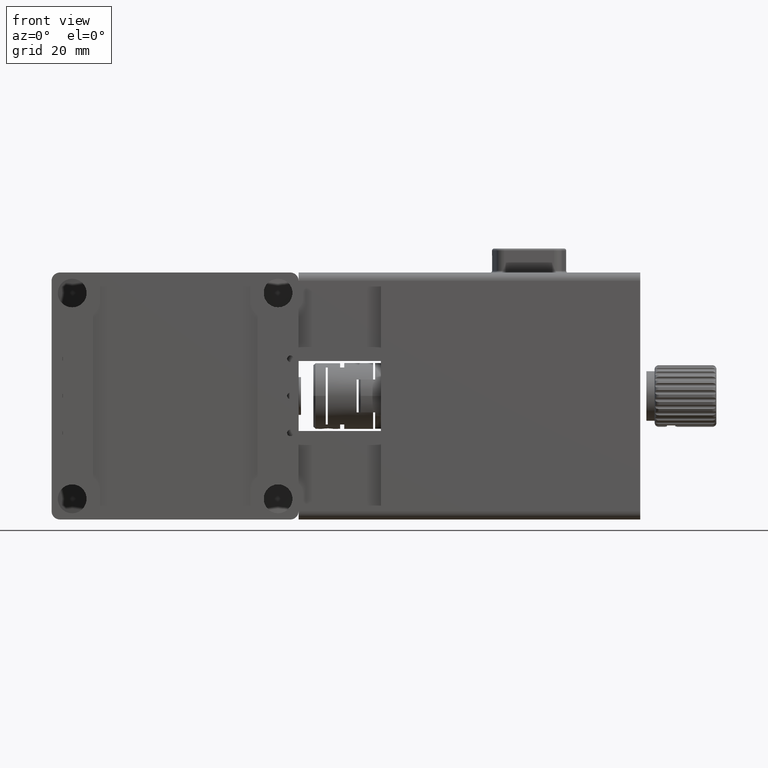
[diagram: clean part render]
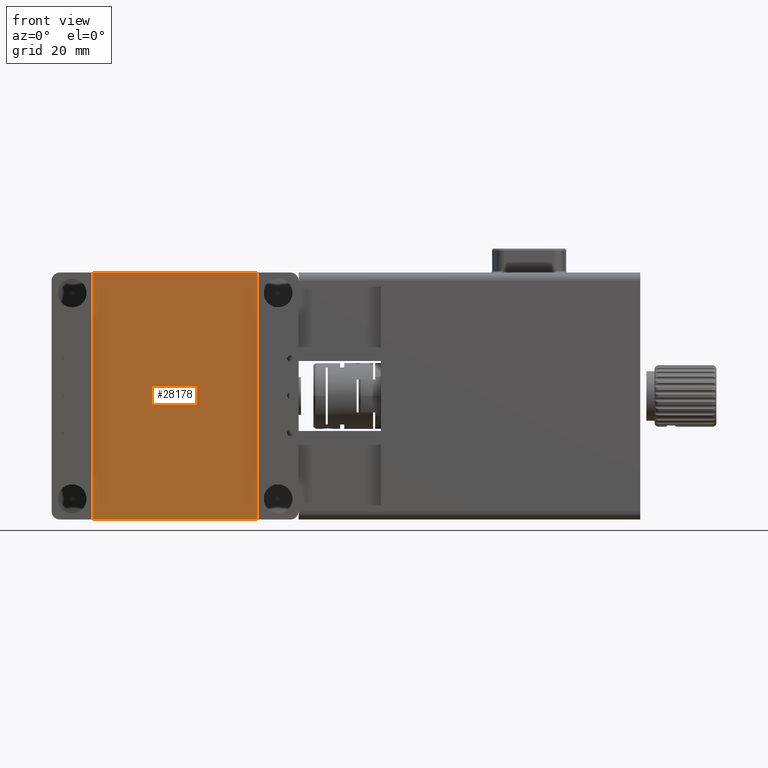
[diagram: same view with one face highlighted and labeled with its STEP entity id]
A machine part, front view. The second image highlights one B-rep face of the part: STEP entity #28178.
In plain terms, the highlighted planar face has unit normal (0, -1, 0).
Its self-contained STEP definition (entity closure, byte-faithful):
#312 = ORIENTED_EDGE ( 'NONE', *, *, #38668, .T. ) ;
#1099 = LINE ( 'NONE', #41684, #30943 ) ;
#4701 = VECTOR ( 'NONE', #32965, 1000.000000000000000 ) ;
#5623 = VERTEX_POINT ( 'NONE', #11141 ) ;
#9245 = VERTEX_POINT ( 'NONE', #25505 ) ;
#10090 = LINE ( 'NONE', #10281, #19238 ) ;
#10281 = CARTESIAN_POINT ( 'NONE',  ( -30.00000000000000000, 1.000000000000000900, -30.00000000000000000 ) ) ;
#11141 = CARTESIAN_POINT ( 'NONE',  ( -19.99999999999999600, 1.000000000000000000, -30.00000000000000700 ) ) ;
#11971 = CARTESIAN_POINT ( 'NONE',  ( 2.234376572406160400, 1.000000000000000000, 1.329375062896291300 ) ) ;
#12086 = LINE ( 'NONE', #27591, #31513 ) ;
#15869 = DIRECTION ( 'NONE',  ( 0.0000000000000000000, -0.0000000000000000000, -1.000000000000000000 ) ) ;
#19238 = VECTOR ( 'NONE', #33219, 1000.000000000000000 ) ;
#19802 = DIRECTION ( 'NONE',  ( 0.0000000000000000000, 0.0000000000000000000, 1.000000000000000000 ) ) ;
#21420 = ORIENTED_EDGE ( 'NONE', *, *, #28102, .F. ) ;
#23830 = AXIS2_PLACEMENT_3D ( 'NONE', #11971, #39135, #15869 ) ;
#25505 = CARTESIAN_POINT ( 'NONE',  ( 19.99999999999999600, 1.000000000000000000, 30.00000000000000700 ) ) ;
#27591 = CARTESIAN_POINT ( 'NONE',  ( -19.99999999999999600, 1.000000000000000000, -30.00000000000000700 ) ) ;
#28102 = EDGE_CURVE ( 'NONE', #9245, #37246, #1099, .T. ) ;
#28178 = ADVANCED_FACE ( 'NONE', ( #45471 ), #42894, .T. ) ;
#28197 = EDGE_CURVE ( 'NONE', #5623, #34179, #12086, .T. ) ;
#29057 = CARTESIAN_POINT ( 'NONE',  ( -29.99999999999999600, 1.000000000000000900, 30.00000000000000700 ) ) ;
#30316 = DIRECTION ( 'NONE',  ( 0.0000000000000000000, 0.0000000000000000000, -1.000000000000000000 ) ) ;
#30375 = CARTESIAN_POINT ( 'NONE',  ( 19.99999999999999600, 1.000000000000000000, -30.00000000000000700 ) ) ;
#30943 = VECTOR ( 'NONE', #30316, 1000.000000000000000 ) ;
#31513 = VECTOR ( 'NONE', #19802, 1000.000000000000000 ) ;
#32929 = ORIENTED_EDGE ( 'NONE', *, *, #43790, .T. ) ;
#32965 = DIRECTION ( 'NONE',  ( -1.000000000000000000, 0.0000000000000000000, 1.156482317317871500E-016 ) ) ;
#33219 = DIRECTION ( 'NONE',  ( 1.000000000000000000, 0.0000000000000000000, -0.0000000000000000000 ) ) ;
#34179 = VERTEX_POINT ( 'NONE', #43749 ) ;
#35755 = ORIENTED_EDGE ( 'NONE', *, *, #28197, .F. ) ;
#37246 = VERTEX_POINT ( 'NONE', #30375 ) ;
#38454 = EDGE_LOOP ( 'NONE', ( #32929, #35755, #312, #21420 ) ) ;
#38668 = EDGE_CURVE ( 'NONE', #5623, #37246, #10090, .T. ) ;
#39135 = DIRECTION ( 'NONE',  ( 0.0000000000000000000, -1.000000000000000000, 0.0000000000000000000 ) ) ;
#41684 = CARTESIAN_POINT ( 'NONE',  ( 19.99999999999999600, 1.000000000000000000, 30.00000000000000700 ) ) ;
#42894 = PLANE ( 'NONE',  #23830 ) ;
#43749 = CARTESIAN_POINT ( 'NONE',  ( -19.99999999999999600, 1.000000000000000000, 30.00000000000000700 ) ) ;
#43790 = EDGE_CURVE ( 'NONE', #9245, #34179, #46021, .T. ) ;
#45471 = FACE_OUTER_BOUND ( 'NONE', #38454, .T. ) ;
#46021 = LINE ( 'NONE', #29057, #4701 ) ;